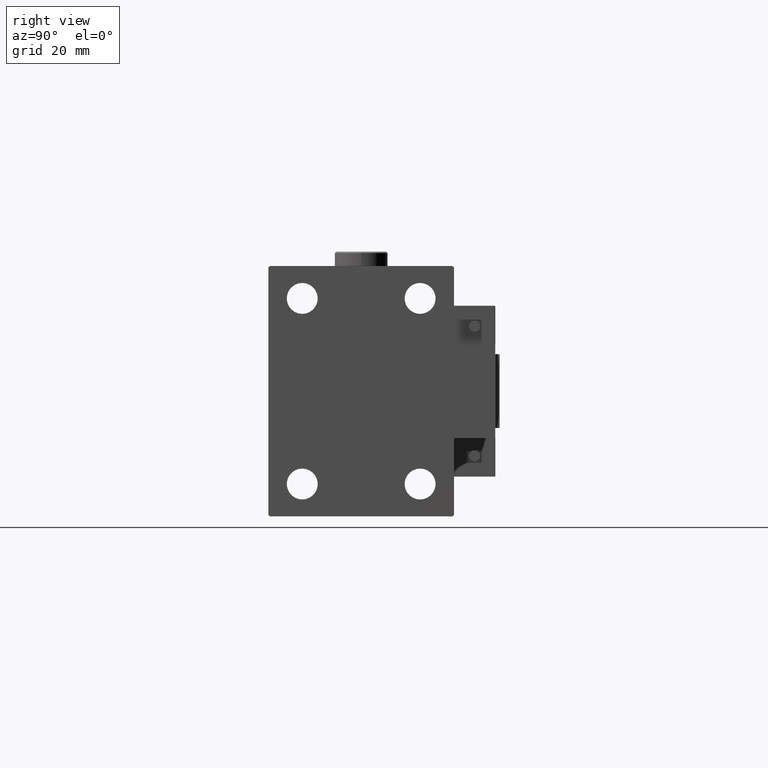
[diagram: clean part render]
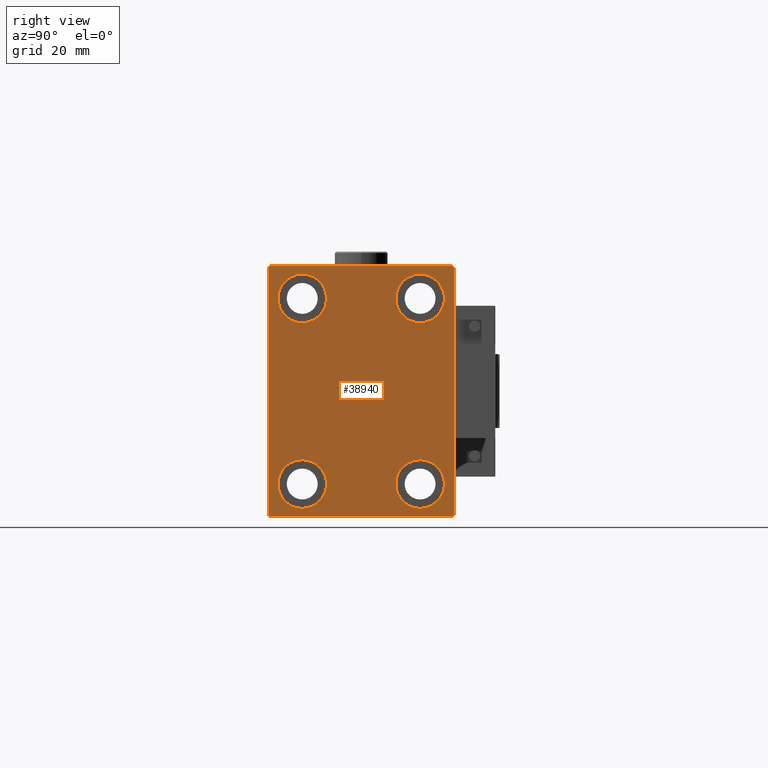
[diagram: same view with one face highlighted and labeled with its STEP entity id]
A machine part, right view. The second image highlights one B-rep face of the part: STEP entity #38940.
In plain terms, the highlighted planar face has unit normal (1, 0, 0).
Its self-contained STEP definition (entity closure, byte-faithful):
#1317 = EDGE_CURVE ( 'NONE', #42453, #37395, #17853, .T. ) ;
#1704 = DIRECTION ( 'NONE',  ( -0.000000000000000000, -0.7071067811865279218, 0.7071067811865671127 ) ) ;
#2320 = CIRCLE ( 'NONE', #22285, 8.250000000000000000 ) ;
#3187 = EDGE_CURVE ( 'NONE', #24520, #7610, #26924, .T. ) ;
#3235 = CARTESIAN_POINT ( 'NONE',  ( 143.0000000000000000, -31.50000000000000000, -42.00000000000003553 ) ) ;
#3274 = FACE_BOUND ( 'NONE', #19900, .T. ) ;
#3712 = CARTESIAN_POINT ( 'NONE',  ( 143.0000000000000000, 19.99999999999999645, -39.74999999999999289 ) ) ;
#4065 = CARTESIAN_POINT ( 'NONE',  ( 143.0000000000000000, -20.00000000000000355, -31.49999999999999289 ) ) ;
#5054 = AXIS2_PLACEMENT_3D ( 'NONE', #28678, #35728, #8865 ) ;
#5084 = LINE ( 'NONE', #20980, #37029 ) ;
#5456 = DIRECTION ( 'NONE',  ( 0.000000000000000000, 0.000000000000000000, 1.000000000000000000 ) ) ;
#5563 = ORIENTED_EDGE ( 'NONE', *, *, #50024, .T. ) ;
#5596 = DIRECTION ( 'NONE',  ( -1.000000000000000000, -0.000000000000000000, -0.000000000000000000 ) ) ;
#6110 = AXIS2_PLACEMENT_3D ( 'NONE', #9351, #16409, #5456 ) ;
#6942 = FACE_OUTER_BOUND ( 'NONE', #44471, .T. ) ;
#7610 = VERTEX_POINT ( 'NONE', #43575 ) ;
#8865 = DIRECTION ( 'NONE',  ( 0.000000000000000000, 0.000000000000000000, 1.000000000000000000 ) ) ;
#9005 = DIRECTION ( 'NONE',  ( 0.000000000000000000, 0.000000000000000000, 1.000000000000000000 ) ) ;
#9351 = CARTESIAN_POINT ( 'NONE',  ( 143.0000000000000000, -19.99999999999999645, 31.50000000000000000 ) ) ;
#9824 = DIRECTION ( 'NONE',  ( 0.000000000000000000, 0.000000000000000000, 1.000000000000000000 ) ) ;
#10587 = PLANE ( 'NONE',  #11724 ) ;
#10677 = VECTOR ( 'NONE', #32471, 1000.000000000000000 ) ;
#10867 = VERTEX_POINT ( 'NONE', #48517 ) ;
#10967 = AXIS2_PLACEMENT_3D ( 'NONE', #43237, #12225, #19788 ) ;
#11099 = FACE_BOUND ( 'NONE', #28820, .T. ) ;
#11223 = VERTEX_POINT ( 'NONE', #33600 ) ;
#11597 = CARTESIAN_POINT ( 'NONE',  ( 143.0000000000000000, 0.000000000000000000, 0.000000000000000000 ) ) ;
#11718 = AXIS2_PLACEMENT_3D ( 'NONE', #33995, #5596, #29302 ) ;
#11724 = AXIS2_PLACEMENT_3D ( 'NONE', #11597, #19422, #31414 ) ;
#12033 = VERTEX_POINT ( 'NONE', #3712 ) ;
#12225 = DIRECTION ( 'NONE',  ( -1.000000000000000000, -0.000000000000000000, -0.000000000000000000 ) ) ;
#12409 = CARTESIAN_POINT ( 'NONE',  ( 143.0000000000000000, -31.00000000000000000, -42.50000000000000711 ) ) ;
#12518 = DIRECTION ( 'NONE',  ( 0.000000000000000000, -1.632680918566406300E-16, 1.000000000000000000 ) ) ;
#12893 = EDGE_CURVE ( 'NONE', #11223, #23323, #2320, .T. ) ;
#12935 = CARTESIAN_POINT ( 'NONE',  ( 143.0000000000000000, -19.99999999999999645, 39.74999999999999289 ) ) ;
#13541 = ORIENTED_EDGE ( 'NONE', *, *, #50143, .T. ) ;
#13943 = EDGE_CURVE ( 'NONE', #19458, #32149, #16836, .T. ) ;
#14246 = CARTESIAN_POINT ( 'NONE',  ( 143.0000000000000000, 19.99999999999999645, -31.49999999999999289 ) ) ;
#15201 = LINE ( 'NONE', #26419, #33637 ) ;
#16004 = VECTOR ( 'NONE', #1704, 1000.000000000000000 ) ;
#16409 = DIRECTION ( 'NONE',  ( -1.000000000000000000, -0.000000000000000000, -0.000000000000000000 ) ) ;
#16819 = LINE ( 'NONE', #41313, #30350 ) ;
#16826 = DIRECTION ( 'NONE',  ( -1.000000000000000000, -0.000000000000000000, -0.000000000000000000 ) ) ;
#16836 = LINE ( 'NONE', #48106, #10677 ) ;
#17454 = ORIENTED_EDGE ( 'NONE', *, *, #49807, .T. ) ;
#17470 = VERTEX_POINT ( 'NONE', #37005 ) ;
#17809 = VERTEX_POINT ( 'NONE', #32282 ) ;
#17853 = LINE ( 'NONE', #33768, #16004 ) ;
#18058 = ORIENTED_EDGE ( 'NONE', *, *, #30014, .T. ) ;
#18376 = AXIS2_PLACEMENT_3D ( 'NONE', #22357, #18453, #34355 ) ;
#18453 = DIRECTION ( 'NONE',  ( -1.000000000000000000, -0.000000000000000000, -0.000000000000000000 ) ) ;
#18748 = ORIENTED_EDGE ( 'NONE', *, *, #12893, .T. ) ;
#19225 = CIRCLE ( 'NONE', #18376, 8.249999999999992895 ) ;
#19422 = DIRECTION ( 'NONE',  ( 1.000000000000000000, 0.000000000000000000, 0.000000000000000000 ) ) ;
#19458 = VERTEX_POINT ( 'NONE', #3235 ) ;
#19788 = DIRECTION ( 'NONE',  ( 0.000000000000000000, 0.000000000000000000, 1.000000000000000000 ) ) ;
#19900 = EDGE_LOOP ( 'NONE', ( #49866, #21833 ) ) ;
#20115 = VERTEX_POINT ( 'NONE', #30697 ) ;
#20131 = EDGE_CURVE ( 'NONE', #37961, #10867, #19225, .T. ) ;
#20865 = CIRCLE ( 'NONE', #5054, 8.250000000000000000 ) ;
#20980 = CARTESIAN_POINT ( 'NONE',  ( 143.0000000000000000, -31.50000000000000000, 42.49999999999999289 ) ) ;
#21523 = ORIENTED_EDGE ( 'NONE', *, *, #13943, .T. ) ;
#21833 = ORIENTED_EDGE ( 'NONE', *, *, #49043, .T. ) ;
#22285 = AXIS2_PLACEMENT_3D ( 'NONE', #4065, #16826, #9005 ) ;
#22357 = CARTESIAN_POINT ( 'NONE',  ( 143.0000000000000000, 20.00000000000000355, 31.50000000000000000 ) ) ;
#22827 = CIRCLE ( 'NONE', #46962, 8.249999999999992895 ) ;
#23323 = VERTEX_POINT ( 'NONE', #33743 ) ;
#23429 = EDGE_CURVE ( 'NONE', #12033, #48351, #20865, .T. ) ;
#24520 = VERTEX_POINT ( 'NONE', #12935 ) ;
#25120 = EDGE_CURVE ( 'NONE', #23323, #11223, #34267, .T. ) ;
#25408 = DIRECTION ( 'NONE',  ( 0.000000000000000000, 1.000000000000000000, 0.000000000000000000 ) ) ;
#25926 = ORIENTED_EDGE ( 'NONE', *, *, #31771, .T. ) ;
#26182 = CARTESIAN_POINT ( 'NONE',  ( 143.0000000000000000, 31.50000000000000000, 42.50000000000000711 ) ) ;
#26419 = CARTESIAN_POINT ( 'NONE',  ( 143.0000000000000000, -36.74999999999997868, 36.74999999999997868 ) ) ;
#26825 = DIRECTION ( 'NONE',  ( -0.000000000000000000, 0.7071067811865474617, 0.7071067811865474617 ) ) ;
#26924 = CIRCLE ( 'NONE', #6110, 8.249999999999992895 ) ;
#27448 = EDGE_LOOP ( 'NONE', ( #44588, #47789 ) ) ;
#27773 = CARTESIAN_POINT ( 'NONE',  ( 143.0000000000000000, 19.99999999999999645, -23.24999999999999289 ) ) ;
#27858 = ORIENTED_EDGE ( 'NONE', *, *, #3187, .T. ) ;
#28678 = CARTESIAN_POINT ( 'NONE',  ( 143.0000000000000000, 19.99999999999999645, -31.49999999999999289 ) ) ;
#28820 = EDGE_LOOP ( 'NONE', ( #5563, #27858 ) ) ;
#29058 = DIRECTION ( 'NONE',  ( 0.000000000000000000, 0.000000000000000000, -1.000000000000000000 ) ) ;
#29302 = DIRECTION ( 'NONE',  ( 0.000000000000000000, 0.000000000000000000, 1.000000000000000000 ) ) ;
#30014 = EDGE_CURVE ( 'NONE', #17470, #17809, #15201, .T. ) ;
#30350 = VECTOR ( 'NONE', #25408, 1000.000000000000000 ) ;
#30697 = CARTESIAN_POINT ( 'NONE',  ( 143.0000000000000000, 31.50000000000001421, -42.00000000000000711 ) ) ;
#31414 = DIRECTION ( 'NONE',  ( 0.000000000000000000, 0.000000000000000000, -1.000000000000000000 ) ) ;
#31771 = EDGE_CURVE ( 'NONE', #32149, #37536, #16819, .T. ) ;
#31836 = EDGE_CURVE ( 'NONE', #17809, #19458, #5084, .T. ) ;
#32149 = VERTEX_POINT ( 'NONE', #12409 ) ;
#32282 = CARTESIAN_POINT ( 'NONE',  ( 143.0000000000000000, -31.50000000000000000, 41.99999999999996447 ) ) ;
#32471 = DIRECTION ( 'NONE',  ( -0.000000000000000000, 0.7071067811865671127, -0.7071067811865279218 ) ) ;
#32602 = CARTESIAN_POINT ( 'NONE',  ( 143.0000000000000000, 31.50000000000001421, -42.50000000000000711 ) ) ;
#32900 = CARTESIAN_POINT ( 'NONE',  ( 143.0000000000000000, 31.00000000000002842, 42.50000000000000711 ) ) ;
#33162 = CARTESIAN_POINT ( 'NONE',  ( 143.0000000000000000, 31.00000000000001421, -42.50000000000000711 ) ) ;
#33399 = CIRCLE ( 'NONE', #11718, 8.249999999999992895 ) ;
#33600 = CARTESIAN_POINT ( 'NONE',  ( 143.0000000000000000, -20.00000000000000355, -39.74999999999999289 ) ) ;
#33637 = VECTOR ( 'NONE', #34763, 1000.000000000000114 ) ;
#33743 = CARTESIAN_POINT ( 'NONE',  ( 143.0000000000000000, -20.00000000000000355, -23.24999999999999289 ) ) ;
#33768 = CARTESIAN_POINT ( 'NONE',  ( 143.0000000000000000, 36.75000000000088107, 36.74999999999884182 ) ) ;
#33943 = CARTESIAN_POINT ( 'NONE',  ( 143.0000000000000000, -19.99999999999999645, 31.50000000000000000 ) ) ;
#33995 = CARTESIAN_POINT ( 'NONE',  ( 143.0000000000000000, 20.00000000000000355, 31.50000000000000000 ) ) ;
#34267 = CIRCLE ( 'NONE', #10967, 8.250000000000000000 ) ;
#34355 = DIRECTION ( 'NONE',  ( 0.000000000000000000, 0.000000000000000000, 1.000000000000000000 ) ) ;
#34432 = ORIENTED_EDGE ( 'NONE', *, *, #31836, .T. ) ;
#34584 = FACE_BOUND ( 'NONE', #27448, .T. ) ;
#34763 = DIRECTION ( 'NONE',  ( 0.000000000000000000, -0.7071067811865474617, -0.7071067811865474617 ) ) ;
#35125 = ORIENTED_EDGE ( 'NONE', *, *, #25120, .T. ) ;
#35318 = AXIS2_PLACEMENT_3D ( 'NONE', #14246, #46053, #9824 ) ;
#35728 = DIRECTION ( 'NONE',  ( -1.000000000000000000, -0.000000000000000000, -0.000000000000000000 ) ) ;
#37005 = CARTESIAN_POINT ( 'NONE',  ( 143.0000000000000000, -30.99999999999997158, 42.49999999999999289 ) ) ;
#37029 = VECTOR ( 'NONE', #29058, 1000.000000000000000 ) ;
#37395 = VERTEX_POINT ( 'NONE', #32900 ) ;
#37536 = VERTEX_POINT ( 'NONE', #33162 ) ;
#37926 = LINE ( 'NONE', #26182, #40313 ) ;
#37961 = VERTEX_POINT ( 'NONE', #50769 ) ;
#38423 = VECTOR ( 'NONE', #26825, 1000.000000000000114 ) ;
#38752 = FACE_BOUND ( 'NONE', #44136, .T. ) ;
#38940 = ADVANCED_FACE ( 'NONE', ( #3274, #11099, #34584, #38752, #6942 ), #10587, .T. ) ;
#38949 = DIRECTION ( 'NONE',  ( 0.000000000000000000, -1.000000000000000000, -2.202823461557850341E-16 ) ) ;
#40161 = LINE ( 'NONE', #32602, #41982 ) ;
#40313 = VECTOR ( 'NONE', #38949, 1000.000000000000000 ) ;
#41313 = CARTESIAN_POINT ( 'NONE',  ( 143.0000000000000000, -31.50000000000000000, -42.50000000000000711 ) ) ;
#41982 = VECTOR ( 'NONE', #12518, 1000.000000000000000 ) ;
#42453 = VERTEX_POINT ( 'NONE', #50711 ) ;
#42717 = EDGE_CURVE ( 'NONE', #10867, #37961, #33399, .T. ) ;
#43004 = EDGE_CURVE ( 'NONE', #37536, #20115, #50782, .T. ) ;
#43227 = ORIENTED_EDGE ( 'NONE', *, *, #43004, .T. ) ;
#43237 = CARTESIAN_POINT ( 'NONE',  ( 143.0000000000000000, -20.00000000000000355, -31.49999999999999289 ) ) ;
#43575 = CARTESIAN_POINT ( 'NONE',  ( 143.0000000000000000, -19.99999999999999645, 23.25000000000000355 ) ) ;
#43641 = CIRCLE ( 'NONE', #35318, 8.250000000000000000 ) ;
#44136 = EDGE_LOOP ( 'NONE', ( #18748, #35125 ) ) ;
#44344 = ORIENTED_EDGE ( 'NONE', *, *, #1317, .T. ) ;
#44471 = EDGE_LOOP ( 'NONE', ( #17454, #18058, #34432, #21523, #25926, #43227, #13541, #44344 ) ) ;
#44588 = ORIENTED_EDGE ( 'NONE', *, *, #20131, .T. ) ;
#45920 = DIRECTION ( 'NONE',  ( -1.000000000000000000, -0.000000000000000000, -0.000000000000000000 ) ) ;
#46053 = DIRECTION ( 'NONE',  ( -1.000000000000000000, -0.000000000000000000, -0.000000000000000000 ) ) ;
#46620 = CARTESIAN_POINT ( 'NONE',  ( 143.0000000000000000, 36.75000000000001421, -36.75000000000001421 ) ) ;
#46962 = AXIS2_PLACEMENT_3D ( 'NONE', #33943, #45920, #50090 ) ;
#47789 = ORIENTED_EDGE ( 'NONE', *, *, #42717, .T. ) ;
#48106 = CARTESIAN_POINT ( 'NONE',  ( 143.0000000000000000, -36.74999999999914735, -36.75000000000118661 ) ) ;
#48351 = VERTEX_POINT ( 'NONE', #27773 ) ;
#48517 = CARTESIAN_POINT ( 'NONE',  ( 143.0000000000000000, 20.00000000000000355, 39.74999999999999289 ) ) ;
#49043 = EDGE_CURVE ( 'NONE', #48351, #12033, #43641, .T. ) ;
#49807 = EDGE_CURVE ( 'NONE', #37395, #17470, #37926, .T. ) ;
#49866 = ORIENTED_EDGE ( 'NONE', *, *, #23429, .T. ) ;
#50024 = EDGE_CURVE ( 'NONE', #7610, #24520, #22827, .T. ) ;
#50090 = DIRECTION ( 'NONE',  ( 0.000000000000000000, 0.000000000000000000, 1.000000000000000000 ) ) ;
#50143 = EDGE_CURVE ( 'NONE', #20115, #42453, #40161, .T. ) ;
#50711 = CARTESIAN_POINT ( 'NONE',  ( 143.0000000000000000, 31.50000000000000000, 42.00000000000000711 ) ) ;
#50769 = CARTESIAN_POINT ( 'NONE',  ( 143.0000000000000000, 20.00000000000000355, 23.25000000000000355 ) ) ;
#50782 = LINE ( 'NONE', #46620, #38423 ) ;